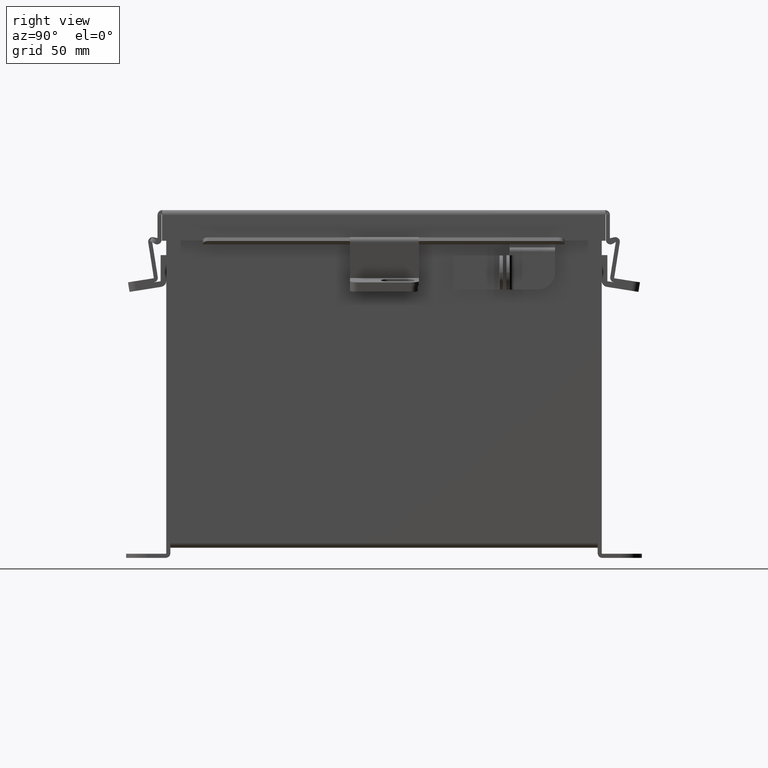
[diagram: clean part render]
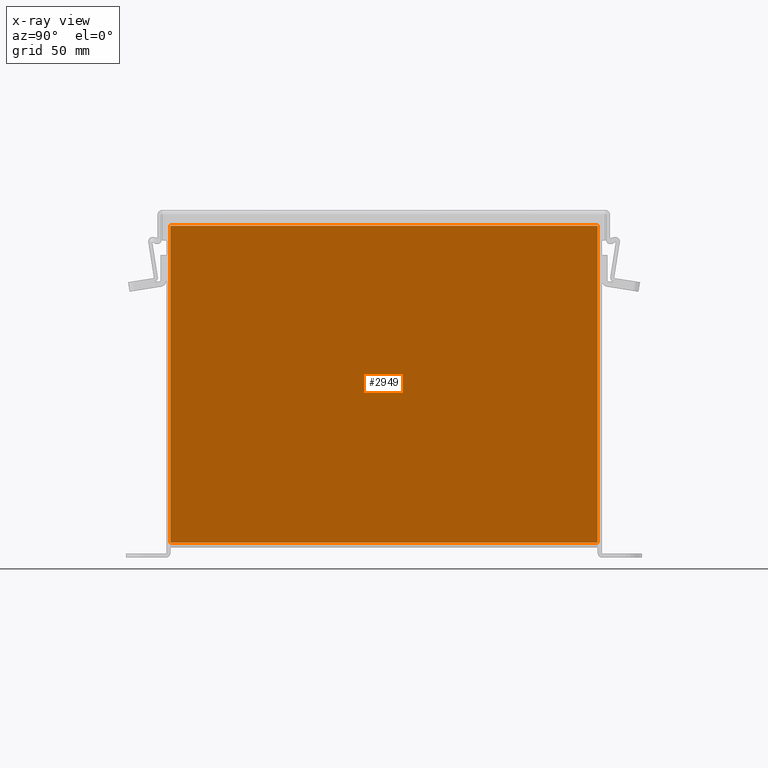
[diagram: x-ray — body ghosted, one internal face saturated and labeled with its STEP entity id]
A machine part, right view, then the same camera in x-ray: the body is ghosted and one INTERNAL B-rep face — a face not visible from any outside direction — is saturated and labeled: STEP entity #2949.
In plain terms, the highlighted planar face has unit normal (-1, 0, 0).
Its self-contained STEP definition (entity closure, byte-faithful):
#92 = AXIS2_PLACEMENT_3D ( 'NONE', #12011, #7549, #11901 ) ;
#259 = VERTEX_POINT ( 'NONE', #8874 ) ;
#497 = ORIENTED_EDGE ( 'NONE', *, *, #14627, .F. ) ;
#641 = EDGE_CURVE ( 'NONE', #9473, #259, #1921, .T. ) ;
#1153 = VECTOR ( 'NONE', #12400, 39.37007874015748100 ) ;
#1692 = PLANE ( 'NONE',  #92 ) ;
#1921 = LINE ( 'NONE', #5337, #4695 ) ;
#2160 = VERTEX_POINT ( 'NONE', #10303 ) ;
#2360 = ORIENTED_EDGE ( 'NONE', *, *, #2608, .F. ) ;
#2368 = DIRECTION ( 'NONE',  ( 2.404758783435167000E-031, 1.000000000000000000, 6.959590333641414100E-017 ) ) ;
#2608 = EDGE_CURVE ( 'NONE', #259, #9758, #15109, .T. ) ;
#2949 = ADVANCED_FACE ( 'NONE', ( #11231 ), #1692, .T. ) ;
#4317 = LINE ( 'NONE', #7628, #1153 ) ;
#4695 = VECTOR ( 'NONE', #9630, 39.37007874015748100 ) ;
#4905 = VECTOR ( 'NONE', #2368, 39.37007874015748100 ) ;
#5337 = CARTESIAN_POINT ( 'NONE',  ( 2.925300000000020900, 3.925299999999999100, 5.837599999999999200 ) ) ;
#5935 = ORIENTED_EDGE ( 'NONE', *, *, #13085, .F. ) ;
#6413 = EDGE_LOOP ( 'NONE', ( #2360, #13964, #5935, #497 ) ) ;
#6877 = CARTESIAN_POINT ( 'NONE',  ( 2.925300000000000500, -3.925299999999999100, 0.0000000000000000000 ) ) ;
#7549 = DIRECTION ( 'NONE',  ( -1.000000000000000000, 0.0000000000000000000, 3.455316574900958600E-015 ) ) ;
#7628 = CARTESIAN_POINT ( 'NONE',  ( 2.925300000000020900, 3.925299999999999100, 5.850600000000000000 ) ) ;
#8874 = CARTESIAN_POINT ( 'NONE',  ( 2.925300000000020900, -3.925299999999999100, 5.837599999999999200 ) ) ;
#9473 = VERTEX_POINT ( 'NONE', #13471 ) ;
#9630 = DIRECTION ( 'NONE',  ( -0.0000000000000000000, -1.000000000000000000, -0.0000000000000000000 ) ) ;
#9758 = VERTEX_POINT ( 'NONE', #13184 ) ;
#10303 = CARTESIAN_POINT ( 'NONE',  ( 2.925300000000000500, 3.925300000000000500, 0.01300000000000069700 ) ) ;
#10831 = LINE ( 'NONE', #13017, #4905 ) ;
#11231 = FACE_OUTER_BOUND ( 'NONE', #6413, .T. ) ;
#11792 = VECTOR ( 'NONE', #14984, 39.37007874015748100 ) ;
#11901 = DIRECTION ( 'NONE',  ( 3.455316574900958600E-015, 0.0000000000000000000, 1.000000000000000000 ) ) ;
#12011 = CARTESIAN_POINT ( 'NONE',  ( 2.925300000000000500, 0.0000000000000000000, -1.036394832596379800E-014 ) ) ;
#12400 = DIRECTION ( 'NONE',  ( 3.455316574900958600E-015, -1.867738689135653700E-016, 1.000000000000000000 ) ) ;
#13017 = CARTESIAN_POINT ( 'NONE',  ( 2.925300000000000500, -3.925299999999999100, 0.01300000000000011600 ) ) ;
#13085 = EDGE_CURVE ( 'NONE', #2160, #9473, #4317, .T. ) ;
#13184 = CARTESIAN_POINT ( 'NONE',  ( 2.925300000000000500, -3.925299999999999100, 0.01300000000000006500 ) ) ;
#13471 = CARTESIAN_POINT ( 'NONE',  ( 2.925300000000020900, 3.925299999999999100, 5.837599999999999200 ) ) ;
#13964 = ORIENTED_EDGE ( 'NONE', *, *, #641, .F. ) ;
#14627 = EDGE_CURVE ( 'NONE', #9758, #2160, #10831, .T. ) ;
#14984 = DIRECTION ( 'NONE',  ( -3.455316574900958600E-015, -0.0000000000000000000, -1.000000000000000000 ) ) ;
#15109 = LINE ( 'NONE', #6877, #11792 ) ;